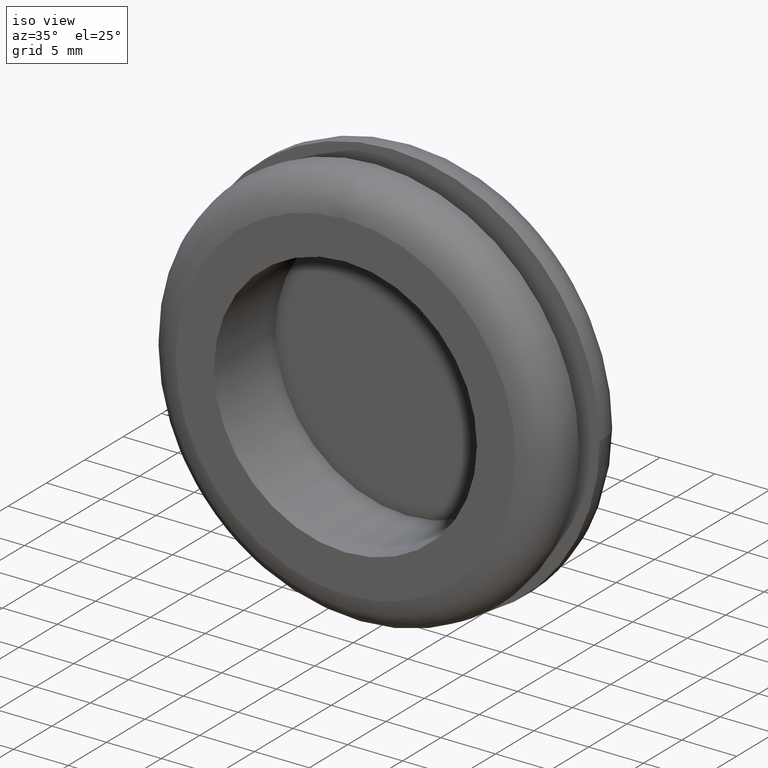
[diagram: clean part render]
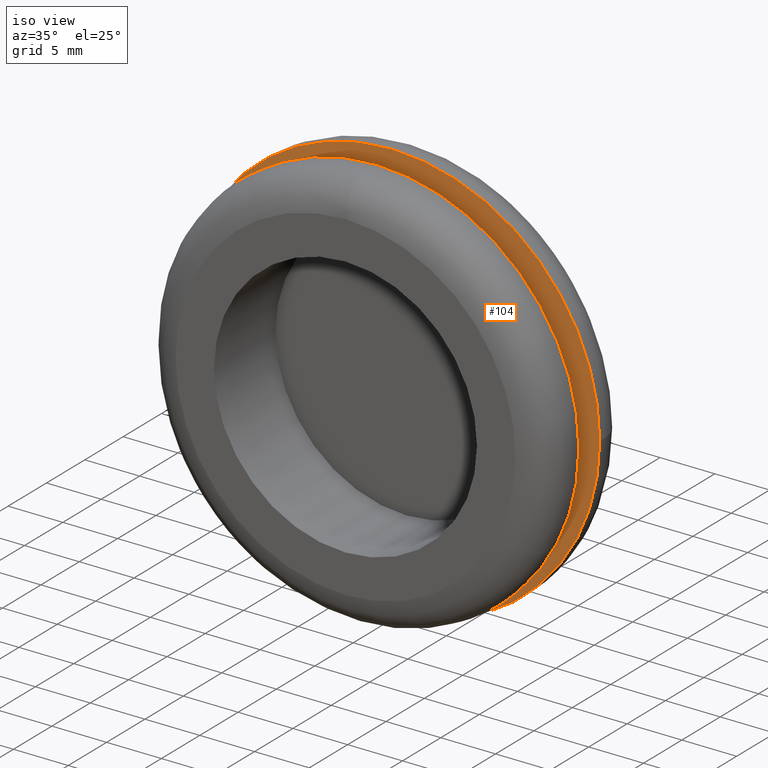
[diagram: same view with one face highlighted and labeled with its STEP entity id]
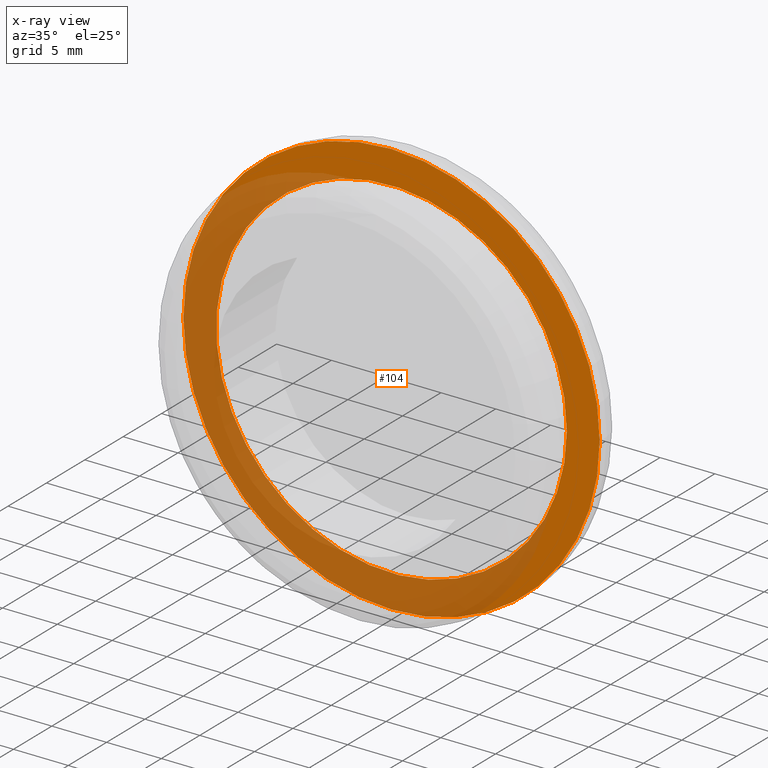
[diagram: x-ray of the same camera — body ghosted, the highlighted face saturated]
A machine part, iso view. The second image highlights one B-rep face of the part: STEP entity #104.
The next image is the same camera in x-ray: the body ghosted, the highlighted face saturated — about 52% of this face is hidden behind the body in this view.
In plain terms, the highlighted planar face has unit normal (0, -1, 0).
Its self-contained STEP definition (entity closure, byte-faithful):
#21=PLANE('',#123);
#28=FACE_BOUND('',#53,.T.);
#37=FACE_OUTER_BOUND('',#52,.T.);
#52=EDGE_LOOP('',(#92));
#53=EDGE_LOOP('',(#93));
#59=CIRCLE('',#118,16.);
#61=CIRCLE('',#122,19.);
#67=VERTEX_POINT('',#177);
#69=VERTEX_POINT('',#183);
#75=EDGE_CURVE('',#67,#67,#59,.T.);
#77=EDGE_CURVE('',#69,#69,#61,.T.);
#92=ORIENTED_EDGE('',*,*,#77,.T.);
#93=ORIENTED_EDGE('',*,*,#75,.T.);
#104=ADVANCED_FACE('',(#37,#28),#21,.T.);
#118=AXIS2_PLACEMENT_3D('',#178,#148,#149);
#122=AXIS2_PLACEMENT_3D('',#184,#156,#157);
#123=AXIS2_PLACEMENT_3D('',#185,#158,#159);
#148=DIRECTION('center_axis',(-1.83697019872103E-16,1.,0.));
#149=DIRECTION('ref_axis',(-1.,0.,0.));
#156=DIRECTION('center_axis',(1.83697019872103E-16,-1.,0.));
#157=DIRECTION('ref_axis',(1.,1.83697019872103E-16,0.));
#158=DIRECTION('center_axis',(1.83697019872103E-16,-1.,0.));
#159=DIRECTION('ref_axis',(0.,0.,-1.));
#177=CARTESIAN_POINT('',(16.,2.93915231795365E-15,1.95943487863577E-15));
#178=CARTESIAN_POINT('Origin',(0.,0.,0.));
#183=CARTESIAN_POINT('',(19.,0.,0.));
#184=CARTESIAN_POINT('Origin',(6.41147307087944E-31,-3.49024337756996E-15,
0.));
#185=CARTESIAN_POINT('Origin',(0.,0.,0.));